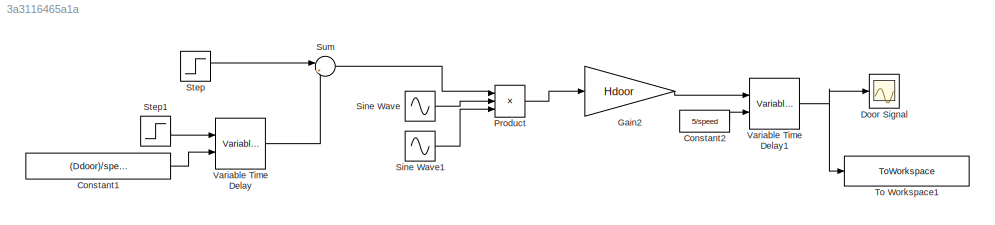
MODEL slx_3a3116465a1a
KIND model
CONFIG AbsTol = auto
CONFIG EnableMultiTasking = off
CONFIG FixedStep = auto
CONFIG MaxStep = auto
CONFIG MinStep = 0.001
CONFIG RelTol = 1e-3
CONFIG SampleTimeConstraint = Unconstrained
CONFIG SolverName = VariableStepAuto
CONFIG StartTime = 0.0
CONFIG StopTime = 5.1
BLOCK [Constant] Constant1
  Value = (Ddoor)/speed
BLOCK [Constant] Constant2
  Value = 5/speed
BLOCK [Scope] Door Signal
  Floating = off
  NumInputPorts = 1
  Ports = [1]
  ScopeSpecificationString = Simulink.scopes.TimeScopeBlockCfg('CurrentConfiguration', extmgr.ConfigurationSet(extmgr.Configuration('Core','General UI',true),extmgr.Configuration('Core','Source UI',true),extmgr.Configuration('Sources','WiredSimulink',true,'DataLoggingVariableName','ScopeData1'),extmgr.Configuration('Visuals','Time Domain',true,'SerializedDisplays',{struct('MinYLimReal','-0.00324','MaxYLimReal','0.02918','YLab...<+1414ch>
BLOCK [Gain] Gain2
  Gain = Hdoor
  NameLocation = right
BLOCK [Product] Product
  Inputs = 3
  Ports = [3, 1]
BLOCK [Sin] Sine Wave
  Frequency = (pi*speed)/Ddoor
  Ports = [0, 1]
  SampleTime = 0
BLOCK [Sin] Sine Wave1
  Frequency = (pi*speed)/Ddoor
  Ports = [0, 1]
  SampleTime = 0
BLOCK [Step] Step
  SampleTime = 0
  Time = 0
BLOCK [Step] Step1
  SampleTime = 0
  Time = 0
BLOCK [Sum] Sum
  Inputs = |+-
  Ports = [2, 1]
BLOCK [ToWorkspace] To Workspace1
  FixptAsFi = on
  MaxDataPoints = inf
  Ports = [1]
  SampleTime = -1
  SaveFormat = Timeseries
  VariableName = doorsignal
BLOCK [VariableTransportDelay] Variable Time Delay
  MaximumDelay = 100
  Ports = [2, 1]
  VariableDelayType = Variable transport delay
  ZeroDelay = on
BLOCK [VariableTransportDelay] Variable Time Delay1
  MaximumDelay = 100
  Ports = [2, 1]
  VariableDelayType = Variable transport delay
  ZeroDelay = on
LINE Constant1:1 -> Variable Time Delay:2
LINE Constant2:1 -> Variable Time Delay1:2
LINE Gain2:1 -> Variable Time Delay1:1
LINE Product:1 -> Gain2:1
LINE Sine Wave1:1 -> Product:3
LINE Sine Wave:1 -> Product:2
LINE Step1:1 -> Variable Time Delay:1
LINE Step:1 -> Sum:1
LINE Sum:1 -> Product:1
NET Variable Time Delay1:1 -> Door Signal:1, To Workspace1:1
LINE Variable Time Delay:1 -> Sum:2
note: NET lines group one-source signal fan-out (src -> all destinations, sorted); 1:1 wires keep LINE
